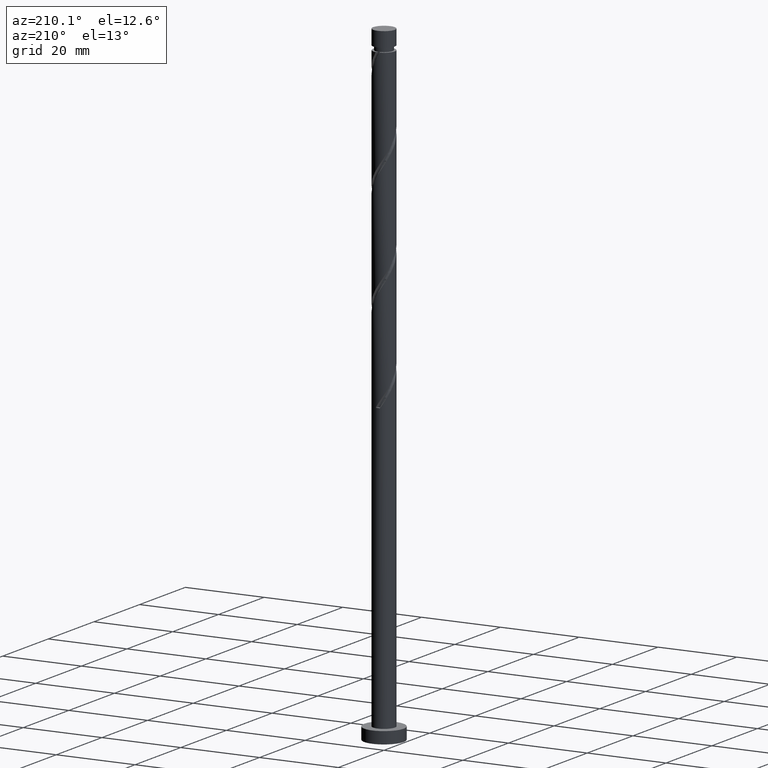
[diagram: clean part render]
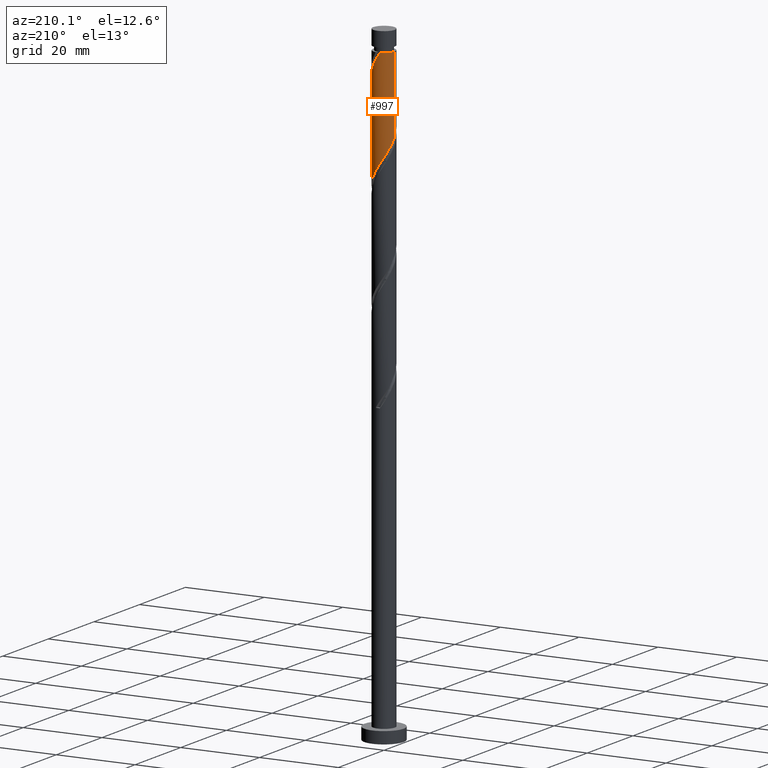
[diagram: same view with one face highlighted and labeled with its STEP entity id]
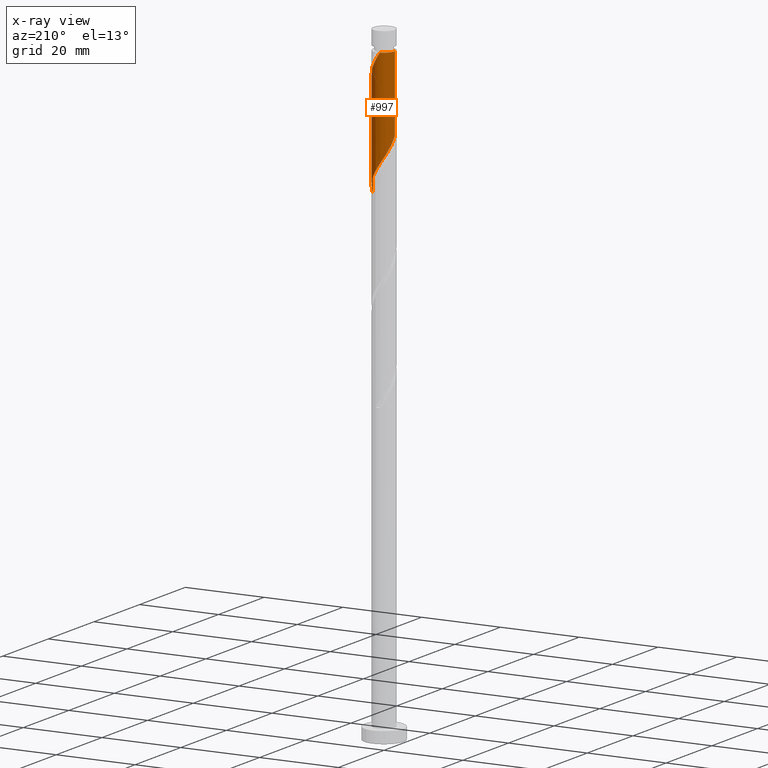
[diagram: x-ray of the same camera — body ghosted, the highlighted face saturated]
A machine part, auxiliary view. The second image highlights one B-rep face of the part: STEP entity #997.
The next image is the same camera in x-ray: the body ghosted, the highlighted face saturated — about 0% of this face is hidden behind the body in this view.
In plain terms, the highlighted cylindrical surface (edge-blend (fillet) strip) has radius 2.75 mm, axis along (-0, -0, -1).
Its self-contained STEP definition (entity closure, byte-faithful):
#37 = CARTESIAN_POINT ( 'NONE',  ( 0.5472430904086421632, 2.695000000000000284, 128.4837728678793951 ) ) ;
#45 = CARTESIAN_POINT ( 'NONE',  ( 2.749999999999999556, -3.170845989141239485E-15, 122.6665606805136548 ) ) ;
#51 = DIRECTION ( 'NONE',  ( -0.000000000000000000, -0.000000000000000000, -1.000000000000000000 ) ) ;
#54 = CIRCLE ( 'NONE', #964, 2.749999999999992895 ) ;
#96 = CARTESIAN_POINT ( 'NONE',  ( 2.456662652402867408, 1.297552352829637323, 149.6958940800006133 ) ) ;
#132 = DIRECTION ( 'NONE',  ( -0.000000000000000000, -0.000000000000000000, -1.000000000000000000 ) ) ;
#154 = CARTESIAN_POINT ( 'NONE',  ( -0.2341933405814784763, 2.740009758965701980, 129.6958940800006417 ) ) ;
#162 = CARTESIAN_POINT ( 'NONE',  ( 2.749999999999999556, 0.3149545503090930842, 123.1525206334849400 ) ) ;
#190 = EDGE_LOOP ( 'NONE', ( #1496, #486, #1094, #925, #1114 ) ) ;
#197 = CARTESIAN_POINT ( 'NONE',  ( 1.991587811523398699, 1.937114215795303629, 150.9080152921218314 ) ) ;
#203 = LINE ( 'NONE', #1508, #532 ) ;
#235 = EDGE_CURVE ( 'NONE', #1139, #322, #566, .T. ) ;
#282 = CARTESIAN_POINT ( 'NONE',  ( 1.917397186166557965, 1.971316319234578396, 126.0595304436369872 ) ) ;
#284 = CARTESIAN_POINT ( 'NONE',  ( -1.991587811523394480, 1.937114215795302519, 132.7261971103036728 ) ) ;
#304 = CARTESIAN_POINT ( 'NONE',  ( 0.000000000000000000, 0.000000000000000000, 160.0000000000000000 ) ) ;
#322 = VERTEX_POINT ( 'NONE', #629 ) ;
#409 = CARTESIAN_POINT ( 'NONE',  ( -2.750000000000000000, -1.263851349445446926E-15, 135.9998940138469834 ) ) ;
#419 = CARTESIAN_POINT ( 'NONE',  ( 1.284345140793827778, 2.431657368816437792, 127.2716516557581770 ) ) ;
#422 = VECTOR ( 'NONE', #51, 1000.000000000000000 ) ;
#468 = CARTESIAN_POINT ( 'NONE',  ( 2.745449597776796313, 0.1581344556611551377, 147.8777122618188287 ) ) ;
#479 = CARTESIAN_POINT ( 'NONE',  ( 2.589687973961440015, 0.9252114339541627208, 149.0898334739400468 ) ) ;
#486 = ORIENTED_EDGE ( 'NONE', *, *, #949, .T. ) ;
#532 = VECTOR ( 'NONE', #1211, 1000.000000000000000 ) ;
#548 = CARTESIAN_POINT ( 'NONE',  ( -1.365166370583079658, 2.419742605459063611, 131.5140758981824547 ) ) ;
#551 = DIRECTION ( 'NONE',  ( -0.000000000000000000, -0.000000000000000000, -1.000000000000000000 ) ) ;
#559 = CARTESIAN_POINT ( 'NONE',  ( -2.456662652402862523, 1.297552352829637101, 133.9383183224248910 ) ) ;
#566 =( BOUNDED_CURVE ( )  B_SPLINE_CURVE ( 2, ( #613, #1612, #468, #1225, #479, #96, #606, #197, #954, #855, #1644, #1364, #1205, #973, #1634 ),
 .UNSPECIFIED., .F., .T. ) 
 B_SPLINE_CURVE_WITH_KNOTS ( ( 3, 2, 2, 2, 2, 2, 2, 3 ),
 ( 0.6795252162417516617, 0.6818181818181818787, 0.6931818181818181213, 0.7045454545454545858, 0.7159090909090908283, 0.7272727272727271819, 0.7386363636363635354, 0.7499999999999998890 ),
 .UNSPECIFIED. ) 
 CURVE ( )  GEOMETRIC_REPRESENTATION_ITEM ( )  RATIONAL_B_SPLINE_CURVE ( ( 0.9061101570135662309, 0.9072237824201483392, 0.9090909090909256030, 0.8998376744372277303, 0.9090909090909256030, 0.8998376744372277303, 0.9090909090909256030, 0.8998376744372277303, 0.9090909090909256030, 0.8998376744372277303, 0.9090909090909256030, 0.8998376744372277303, 0.9090909090909256030, 0.8998376744372278413, 0.9090909090909254919 ) ) 
 REPRESENTATION_ITEM ( '' )  );
#606 = CARTESIAN_POINT ( 'NONE',  ( 2.224125231963132610, 1.617333284312470365, 150.3019546860612365 ) ) ;
#613 = CARTESIAN_POINT ( 'NONE',  ( 2.750000000000004441, 1.705077560198580878E-15, 147.6343183885785493 ) ) ;
#629 = CARTESIAN_POINT ( 'NONE',  ( -0.5472430904086255099, 2.694999999999999396, 155.1504395345460523 ) ) ;
#631 = VERTEX_POINT ( 'NONE', #1494 ) ;
#672 = CARTESIAN_POINT ( 'NONE',  ( -2.722713295520007737, 0.5528705150786886735, 135.1504395345461091 ) ) ;
#771 = CARTESIAN_POINT ( 'NONE',  ( -2.745449597776791872, 0.1581344556611559704, 135.7565001406066756 ) ) ;
#782 = CARTESIAN_POINT ( 'NONE',  ( -0.9966568199191122579, 2.563040222725488704, 130.9080152921218314 ) ) ;
#785 = FACE_OUTER_BOUND ( 'NONE', #190, .T. ) ;
#789 = CARTESIAN_POINT ( 'NONE',  ( 2.589396545961874629, 1.006905667779018243, 124.2413486254551884 ) ) ;
#855 = CARTESIAN_POINT ( 'NONE',  ( 1.365166370583081434, 2.419742605459066720, 152.1201365042430780 ) ) ;
#887 = AXIS2_PLACEMENT_3D ( 'NONE', #304, #551, #918 ) ;
#903 = CARTESIAN_POINT ( 'NONE',  ( 2.750000000000004441, 1.705077560198580878E-15, 147.6343183885785493 ) ) ;
#905 = CARTESIAN_POINT ( 'NONE',  ( -2.589687973961434686, 0.9252114339541620547, 134.5443789284854859 ) ) ;
#915 = CARTESIAN_POINT ( 'NONE',  ( 1.633964688862560966, 2.246996415572367845, 126.6655910496976247 ) ) ;
#918 = DIRECTION ( 'NONE',  ( -1.000000000000000000, 0.000000000000000000, 0.000000000000000000 ) ) ;
#925 = ORIENTED_EDGE ( 'NONE', *, *, #1047, .F. ) ;
#949 = EDGE_CURVE ( 'NONE', #1139, #631, #203, .T. ) ;
#954 = CARTESIAN_POINT ( 'NONE',  ( 1.678377091053239401, 2.178428410627185396, 151.5140758981824547 ) ) ;
#964 = AXIS2_PLACEMENT_3D ( 'NONE', #1274, #132, #1503 ) ;
#973 = CARTESIAN_POINT ( 'NONE',  ( -0.1597605880921838251, 2.773681677939495049, 154.5443789284854290 ) ) ;
#997 = ADVANCED_FACE ( 'NONE', ( #785 ), #1302, .T. ) ;
#1038 = CARTESIAN_POINT ( 'NONE',  ( 2.395113114716214131, 1.351270945337903706, 124.8474092315157833 ) ) ;
#1040 = CARTESIAN_POINT ( 'NONE',  ( 0.1597605880921882382, 2.773681677939491053, 129.0898334739400468 ) ) ;
#1047 = EDGE_CURVE ( 'NONE', #1355, #1123, #1312, .T. ) ;
#1048 = CARTESIAN_POINT ( 'NONE',  ( -2.750000000000000000, -1.263851349445446926E-15, 135.9998940138469834 ) ) ;
#1052 = CARTESIAN_POINT ( 'NONE',  ( -1.678377091053236958, 2.178428410627182288, 132.1201365042430211 ) ) ;
#1094 = ORIENTED_EDGE ( 'NONE', *, *, #1099, .F. ) ;
#1099 = EDGE_CURVE ( 'NONE', #1123, #631, #1187, .T. ) ;
#1114 = ORIENTED_EDGE ( 'NONE', *, *, #1469, .T. ) ;
#1123 = VERTEX_POINT ( 'NONE', #1048 ) ;
#1139 = VERTEX_POINT ( 'NONE', #903 ) ;
#1178 = CARTESIAN_POINT ( 'NONE',  ( -2.750000000000000000, 0.000000000000000000, 160.0000000000000000 ) ) ;
#1187 =( BOUNDED_CURVE ( )  B_SPLINE_CURVE ( 2, ( #409, #1439, #771, #672, #905, #559, #1430, #284, #1052, #548, #782, #1298, #154, #1040, #37, #1560, #419, #915, #282, #1280, #1038, #789, #1309, #162, #45 ),
 .UNSPECIFIED., .F., .T. ) 
 B_SPLINE_CURVE_WITH_KNOTS ( ( 3, 2, 2, 2, 2, 2, 2, 2, 2, 2, 2, 2, 3 ),
 ( 0.4295252162417511066, 0.4318181818181818232, 0.4431818181818181768, 0.4545454545454545303, 0.4659090909090908839, 0.4772727272727272929, 0.4886363636363636465, 0.5000000000000000000, 0.5113636363636363535, 0.5227272727272727071, 0.5340909090909090606, 0.5454545454545454142, 0.5545252162417511066 ),
 .UNSPECIFIED. ) 
 CURVE ( )  GEOMETRIC_REPRESENTATION_ITEM ( )  RATIONAL_B_SPLINE_CURVE ( ( 0.9061101570135602357, 0.9072237824201424550, 0.9090909090909201629, 0.8998376744372224012, 0.9090909090909201629, 0.8998376744372224012, 0.9090909090909201629, 0.8998376744372224012, 0.9090909090909201629, 0.8998376744372224012, 0.9090909090909201629, 0.8998376744372224012, 0.9090909090909201629, 0.8998376744372224012, 0.9090909090909201629, 0.8998376744372224012, 0.9090909090909201629, 0.8998376744372224012, 0.9090909090909201629, 0.8998376744372224012, 0.9090909090909201629, 0.8998376744372224012, 0.9090909090909201629, 0.9017048011080001091, 0.9061101570135603467 ) ) 
 REPRESENTATION_ITEM ( '' )  );
#1205 = CARTESIAN_POINT ( 'NONE',  ( 0.2341933405814793923, 2.740009758965706421, 153.9383183224248626 ) ) ;
#1211 = DIRECTION ( 'NONE',  ( -0.000000000000000000, -0.000000000000000000, -1.000000000000000000 ) ) ;
#1225 = CARTESIAN_POINT ( 'NONE',  ( 2.722713295520012178, 0.5528705150786884515, 148.4837728678794520 ) ) ;
#1274 = CARTESIAN_POINT ( 'NONE',  ( 0.000000000000000000, 0.000000000000000000, 155.1504395345461091 ) ) ;
#1280 = CARTESIAN_POINT ( 'NONE',  ( 2.200829683470555853, 1.695636222896788059, 125.4534698375764350 ) ) ;
#1298 = CARTESIAN_POINT ( 'NONE',  ( -0.6281472692551449688, 2.706337839991914240, 130.3019546860612650 ) ) ;
#1302 = CYLINDRICAL_SURFACE ( 'NONE', #887, 2.750000000000000000 ) ;
#1309 = CARTESIAN_POINT ( 'NONE',  ( 2.678791222997725541, 0.6217536357676973768, 123.6352880193945509 ) ) ;
#1312 = LINE ( 'NONE', #1178, #422 ) ;
#1355 = VERTEX_POINT ( 'NONE', #1483 ) ;
#1364 = CARTESIAN_POINT ( 'NONE',  ( 0.6281472692551467452, 2.706337839991918237, 153.3322577163642393 ) ) ;
#1430 = CARTESIAN_POINT ( 'NONE',  ( -2.224125231963128613, 1.617333284312469255, 133.3322577163642677 ) ) ;
#1439 = CARTESIAN_POINT ( 'NONE',  ( -2.750000000000000000, 0.07913269794050366290, 135.8777960091287582 ) ) ;
#1469 = EDGE_CURVE ( 'NONE', #1355, #322, #54, .T. ) ;
#1483 = CARTESIAN_POINT ( 'NONE',  ( -2.749999999999992895, 0.000000000000000000, 155.1504395345461091 ) ) ;
#1494 = CARTESIAN_POINT ( 'NONE',  ( 2.750000000000000000, -3.170845989141239485E-15, 122.6665606805136548 ) ) ;
#1496 = ORIENTED_EDGE ( 'NONE', *, *, #235, .F. ) ;
#1503 = DIRECTION ( 'NONE',  ( -1.000000000000000000, 0.000000000000000000, 0.000000000000000000 ) ) ;
#1508 = CARTESIAN_POINT ( 'NONE',  ( 2.750000000000000000, 3.367778697655221012E-16, 160.0000000000000000 ) ) ;
#1560 = CARTESIAN_POINT ( 'NONE',  ( 0.9347255927250948115, 2.616318322060508628, 127.8777122618188145 ) ) ;
#1612 = CARTESIAN_POINT ( 'NONE',  ( 2.750000000000003109, 0.07913269794052081585, 147.7564163932967460 ) ) ;
#1634 = CARTESIAN_POINT ( 'NONE',  ( -0.5472430904086255099, 2.694999999999999396, 155.1504395345460523 ) ) ;
#1644 = CARTESIAN_POINT ( 'NONE',  ( 0.9966568199191135902, 2.563040222725492701, 152.7261971103037013 ) ) ;